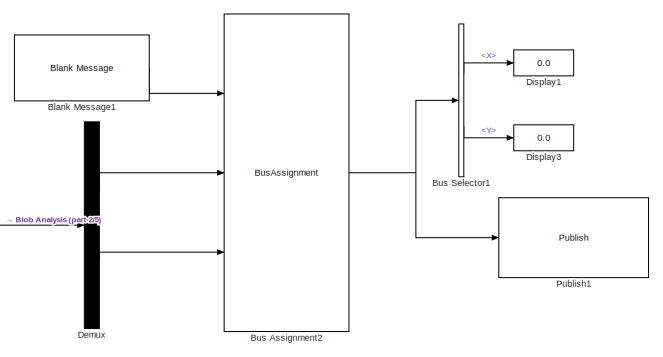
[diagram: root canvas - part 1/5, top right region]
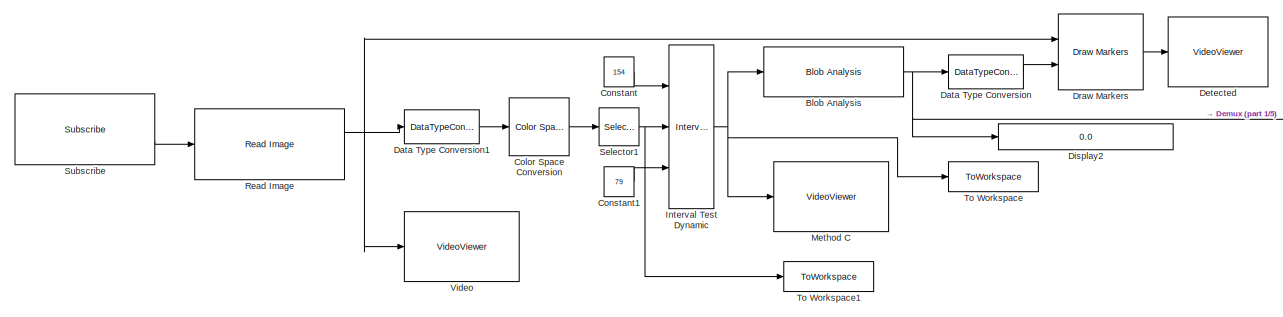
[diagram: root canvas - part 2/5, top center region]
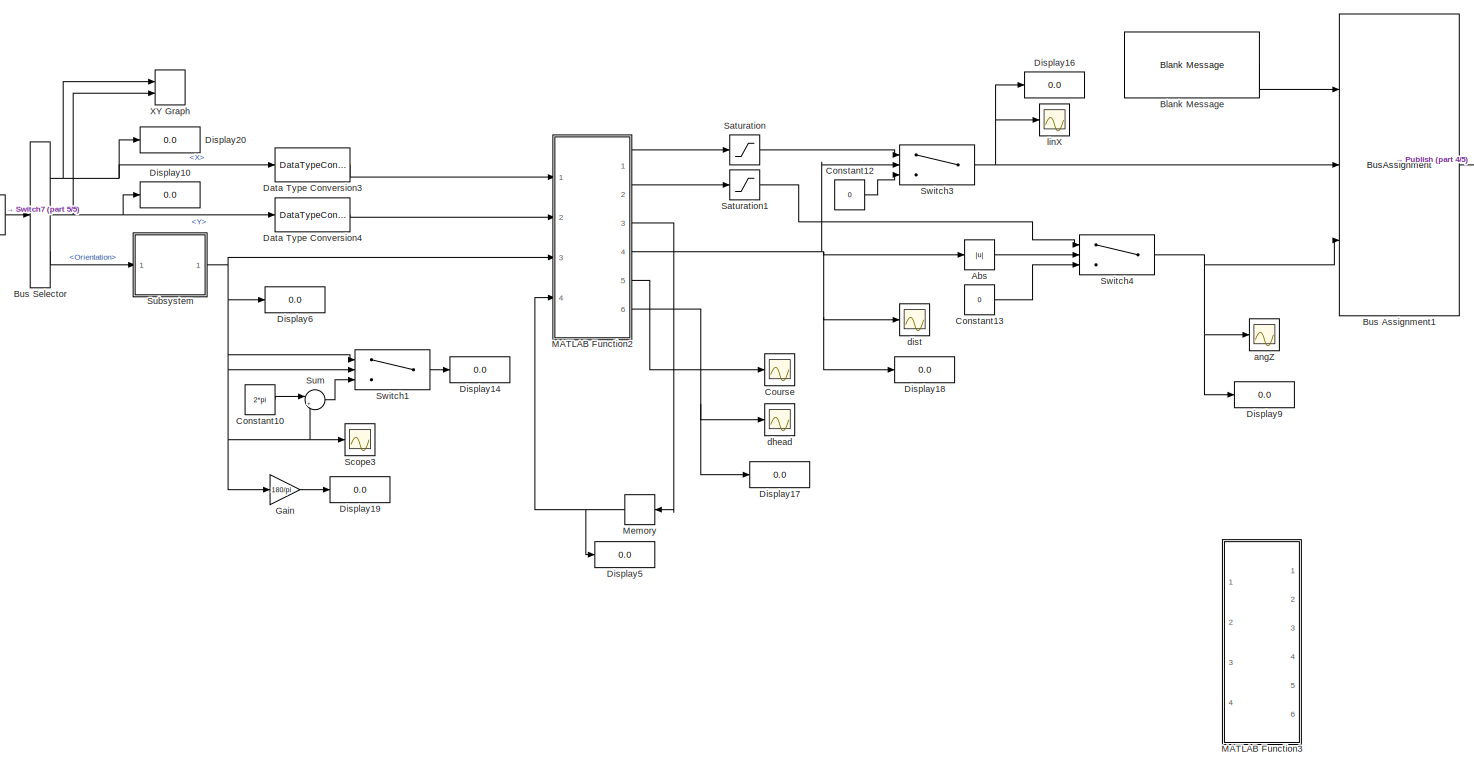
[diagram: root canvas - part 3/5, full width, bottom band]
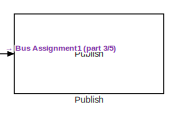
[diagram: root canvas - part 4/5, middle right region]
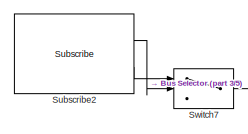
[diagram: root canvas - part 5/5, middle left region]
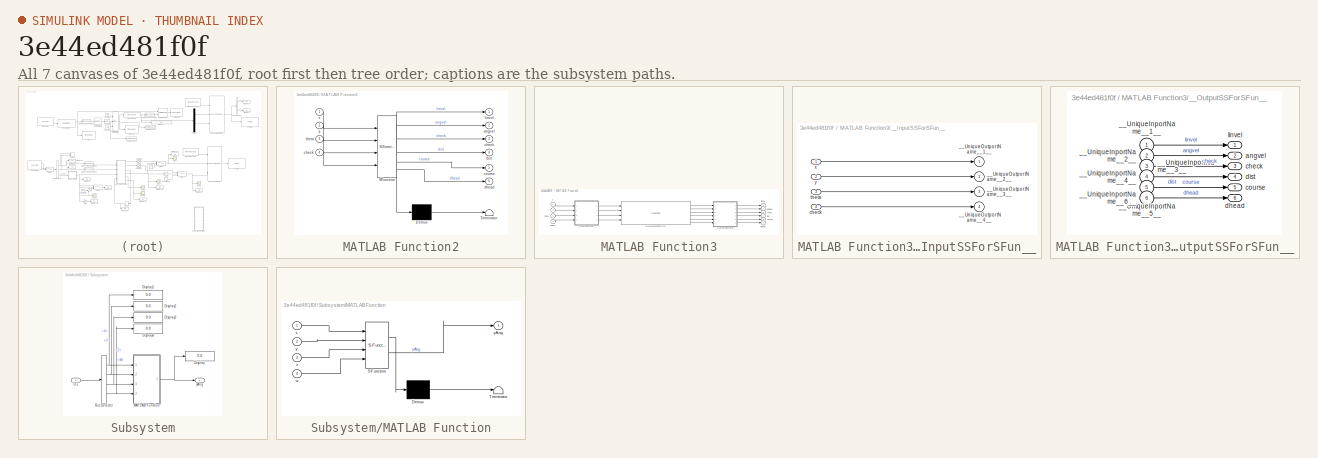
[diagram: thumbnail index - all 7 canvases of the model, root first then tree order]
MODEL slx_3e44ed481f0f
KIND model
CONFIG AbsTol = auto
CONFIG EnableMultiTasking = off
CONFIG FixedStep = 0.05
CONFIG MaxStep = auto
CONFIG MinStep = auto
CONFIG RelTol = 1e-3
CONFIG SampleTimeConstraint = Unconstrained
CONFIG SolverName = FixedStepAuto
CONFIG StartTime = 0.0
CONFIG StopTime = inf
WORKSPACE source: mxarray member
WORKSPACE SL_ROS_VariableLengthArrays_MaxSizes: object (value not decoded)
BLOCK [Abs] Abs
  SaturateOnIntegerOverflow = off
BLOCK [Reference] Blank Message  REF=robotlib/Blank Message
  Ports = [0, 1]
  SourceBlock = robotlib/Blank Message
  SourceProductBaseCode = RR
  SourceType = ROS Blank Message
BLOCK [Reference] Blank Message1  REF=robotlib/Blank Message
  Ports = [0, 1]
  SourceBlock = robotlib/Blank Message
  SourceProductBaseCode = RR
  SourceType = ROS Blank Message
BLOCK [Reference] Blob Analysis  REF=visionstatistics/Blob Analysis
  Ports = [1, 1]
  SourceBlock = visionstatistics/Blob Analysis
  SourceProductBaseCode = VP
  SourceType = Blob Analysis
  Tag = vipblks_row_conv
BLOCK [BusAssignment] Bus Assignment1
  AssignedSignals = Linear.X,Angular.Z
  Ports = [3, 1]
BLOCK [BusAssignment] Bus Assignment2
  AssignedSignals = X,Y
  Ports = [3, 1]
BLOCK [BusSelector] Bus Selector
  OutputSignals = Pose.Pose.Position.X,Pose.Pose.Position.Y,Pose.Pose.Orientation
  Ports = [1, 3]
BLOCK [BusSelector] Bus Selector1
  OutputSignals = X,Y
  Ports = [1, 2]
BLOCK [Reference] Color Space Conversion  REF=visionconversions/Color Space
 Conversion
  Ports = [1, 1]
  SourceBlock = visionconversions/Color Space\n Conversion
  SourceProductBaseCode = VP
  SourceType = Color Space Conversion
BLOCK [Constant] Constant
  Value = 154
BLOCK [Constant] Constant1
  Value = 79
BLOCK [Constant] Constant10
  Value = 2*pi
BLOCK [Constant] Constant12
  Value = 0
BLOCK [Constant] Constant13
  Value = 0
BLOCK [Scope] Course
  Floating = off
  NumInputPorts = 1
  Ports = [1]
  ScopeSpecificationString = Simulink.scopes.TimeScopeBlockCfg('CurrentConfiguration', extmgr.ConfigurationSet(extmgr.Configuration('Core','General UI',true),extmgr.Configuration('Core','Source UI',true),extmgr.Configuration('Sources','WiredSimulink',true,'DataLoggingVariableName','ScopeData1'),extmgr.Configuration('Visuals','Time Domain',true,'SerializedDisplays',{struct('MinYLimReal','-1.23135','MaxYLimReal','-1.20668','YLa...<+1437ch>
BLOCK [DataTypeConversion] Data Type Conversion
  RndMeth = Floor
  SaturateOnIntegerOverflow = off
BLOCK [DataTypeConversion] Data Type Conversion1
  RndMeth = Floor
  SaturateOnIntegerOverflow = off
BLOCK [DataTypeConversion] Data Type Conversion3
  OutDataTypeStr = double
  RndMeth = Floor
  SaturateOnIntegerOverflow = off
BLOCK [DataTypeConversion] Data Type Conversion4
  OutDataTypeStr = double
  RndMeth = Floor
  SaturateOnIntegerOverflow = off
BLOCK [Demux] Demux
  Outputs = 2
  Ports = [1, 2]
BLOCK [VideoViewer] Detected
  FigPos = [73 706 956 540]
  Ports = [1]
  ScopeSpecificationString = vipscopes.VideoViewerScopeCfg('CurrentConfiguration', extmgr.ConfigurationSet(extmgr.Configuration('Core','General UI',true),extmgr.Configuration('Core','Source UI',true),extmgr.Configuration('Sources','WiredSimulink',true),extmgr.Configuration('Visuals','Video',true),extmgr.Configuration('Tools','Image Navigation Tools',true,'Magnification',0.760416666666667,'FitToView',true),extmgr.Configuration...<+151ch>
  colormapValue = gray(256)
BLOCK [Display] Display1
  Decimation = 1
  Ports = [1]
BLOCK [Display] Display10
  Decimation = 1
  Ports = [1]
BLOCK [Display] Display14
  Decimation = 1
  Ports = [1]
BLOCK [Display] Display16
  Decimation = 1
  Ports = [1]
BLOCK [Display] Display17
  Decimation = 1
  Ports = [1]
BLOCK [Display] Display18
  Decimation = 1
  Ports = [1]
BLOCK [Display] Display19
  Decimation = 1
  Ports = [1]
BLOCK [Display] Display2
  Decimation = 1
  Ports = [1]
BLOCK [Display] Display20
  Decimation = 1
  Ports = [1]
BLOCK [Display] Display3
  Decimation = 1
  Ports = [1]
BLOCK [Display] Display5
  Decimation = 1
  Ports = [1]
BLOCK [Display] Display6
  Decimation = 1
  Ports = [1]
BLOCK [Display] Display9
  Decimation = 1
  Ports = [1]
BLOCK [Reference] Draw Markers  REF=visiontextngfix/Draw Markers
  Ports = [2, 1]
  SourceBlock = visiontextngfix/Draw Markers
  SourceProductBaseCode = VP
  SourceType = Draw Markers
BLOCK [Gain] Gain
  Gain = 180/pi
BLOCK [Reference] Interval Test Dynamic  REF=simulink/Logic and Bit
Operations/Interval Test
Dynamic
  Ports = [3, 1]
  SourceBlock = simulink/Logic and Bit\nOperations/Interval Test\nDynamic
  SourceProductBaseCode = SL
  SourceType = Interval Test Dynamic
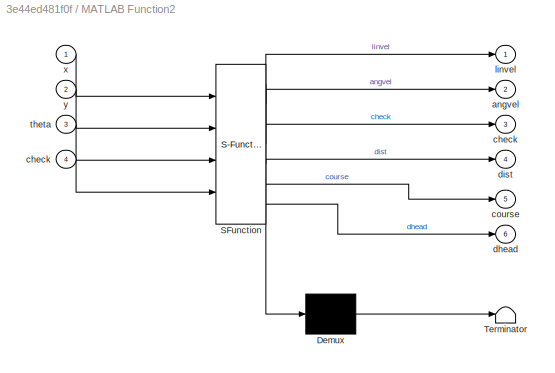
BLOCK [SubSystem] MATLAB Function2
  ErrorFcn = Stateflow.Translate.translate
  PermitHierarchicalResolution = ExplicitOnly
  Ports = [4, 6]
  RequestExecContextInheritance = off
  SFBlockType = MATLAB Function
  TreatAsAtomicUnit = on
BLOCK [Demux] MATLAB Function2/ Demux 
  Outputs = 1
  Ports = [1, 1]
BLOCK [S-Function] MATLAB Function2/ SFunction 
  EnableBusSupport = on
  FunctionName = sf_sfun
  PortCounts = [4 7]
  Ports = [4, 7]
  SFcnIsStateOwnerBlock = off
  SFunctionDeploymentMode = off
  Tag = Stateflow S-Function 1
BLOCK [Terminator] MATLAB Function2/ Terminator 
BLOCK [Outport] MATLAB Function2/angvel
  Port = 2
BLOCK [Outport] MATLAB Function2/check
  Port = 3
BLOCK [Inport] MATLAB Function2/check 
  Port = 4
BLOCK [Outport] MATLAB Function2/course
  Port = 5
BLOCK [Outport] MATLAB Function2/dhead
  Port = 6
BLOCK [Outport] MATLAB Function2/dist
  Port = 4
BLOCK [Outport] MATLAB Function2/linvel
BLOCK [Inport] MATLAB Function2/theta
  Port = 3
BLOCK [Inport] MATLAB Function2/x
BLOCK [Inport] MATLAB Function2/y
  Port = 2
BLOCK [SubSystem] MATLAB Function3
  Commented = on
  Ports = [4, 6]
  RequestExecContextInheritance = off
BLOCK [S-Function] MATLAB Function3/MATLAB Function_sfcn
  CopyFcn = if ~strcmp(get_param(gcb,'Linkstatus'),'none') && ...\n~strcmp(get_param(gcb,'Linkstatus'),'implicit')      \n  set_param(gcb,'LinkStatus','none');                \nend
  EnableBusSupport = off
  FunctionName = MATLAB0_sf
  Ports = [4, 6]
  SFcnIsStateOwnerBlock = off
  SFunctionDeploymentMode = off
BLOCK [SubSystem] MATLAB Function3/__InputSSForSFun__
  PermitHierarchicalResolution = ExplicitOnly
  Ports = [4, 4]
  RequestExecContextInheritance = off
BLOCK [Outport] MATLAB Function3/__InputSSForSFun__/__UniqueOutportName__1__
BLOCK [Outport] MATLAB Function3/__InputSSForSFun__/__UniqueOutportName__2__
  Port = 2
BLOCK [Outport] MATLAB Function3/__InputSSForSFun__/__UniqueOutportName__3__
  Port = 3
BLOCK [Outport] MATLAB Function3/__InputSSForSFun__/__UniqueOutportName__4__
  Port = 4
BLOCK [Inport] MATLAB Function3/__InputSSForSFun__/check 
  Port = 4
BLOCK [Inport] MATLAB Function3/__InputSSForSFun__/theta
  Port = 3
BLOCK [Inport] MATLAB Function3/__InputSSForSFun__/x
BLOCK [Inport] MATLAB Function3/__InputSSForSFun__/y
  Port = 2
BLOCK [SubSystem] MATLAB Function3/__OutputSSForSFun__
  PermitHierarchicalResolution = ExplicitOnly
  Ports = [6, 6]
  RequestExecContextInheritance = off
BLOCK [Inport] MATLAB Function3/__OutputSSForSFun__/__UniqueInportName__1__
BLOCK [Inport] MATLAB Function3/__OutputSSForSFun__/__UniqueInportName__2__
  Port = 2
BLOCK [Inport] MATLAB Function3/__OutputSSForSFun__/__UniqueInportName__3__
  Port = 3
BLOCK [Inport] MATLAB Function3/__OutputSSForSFun__/__UniqueInportName__4__
  Port = 4
BLOCK [Inport] MATLAB Function3/__OutputSSForSFun__/__UniqueInportName__5__
  Port = 5
BLOCK [Inport] MATLAB Function3/__OutputSSForSFun__/__UniqueInportName__6__
  Port = 6
BLOCK [Outport] MATLAB Function3/__OutputSSForSFun__/angvel
  Port = 2
BLOCK [Outport] MATLAB Function3/__OutputSSForSFun__/check
  Port = 3
BLOCK [Outport] MATLAB Function3/__OutputSSForSFun__/course
  Port = 5
BLOCK [Outport] MATLAB Function3/__OutputSSForSFun__/dhead
  Port = 6
BLOCK [Outport] MATLAB Function3/__OutputSSForSFun__/dist
  Port = 4
BLOCK [Outport] MATLAB Function3/__OutputSSForSFun__/linvel
BLOCK [Outport] MATLAB Function3/angvel
  Port = 2
BLOCK [Outport] MATLAB Function3/check
  Port = 3
BLOCK [Inport] MATLAB Function3/check 
  Port = 4
BLOCK [Outport] MATLAB Function3/course
  Port = 5
BLOCK [Outport] MATLAB Function3/dhead
  Port = 6
BLOCK [Outport] MATLAB Function3/dist
  Port = 4
BLOCK [Outport] MATLAB Function3/linvel
BLOCK [Inport] MATLAB Function3/theta
  Port = 3
BLOCK [Inport] MATLAB Function3/x
BLOCK [Inport] MATLAB Function3/y
  Port = 2
BLOCK [Memory] Memory
BLOCK [VideoViewer] Method C
  FigPos = [73 715 956 563]
  Ports = [1]
  ScopeSpecificationString = vipscopes.VideoViewerScopeCfg('CurrentConfiguration', extmgr.ConfigurationSet(extmgr.Configuration('Core','General UI',true),extmgr.Configuration('Core','Source UI',true),extmgr.Configuration('Sources','WiredSimulink',true),extmgr.Configuration('Visuals','Video',true),extmgr.Configuration('Tools','Image Navigation Tools',true,'Magnification',13.7454545454546),extmgr.Configuration('Tools','Image To...<+133ch>
  colormapValue = gray(256)
BLOCK [Reference] Publish  REF=robotlib/Publish
  Ports = [1]
  SourceBlock = robotlib/Publish
  SourceProductBaseCode = RR
  SourceType = ROS Publish
BLOCK [Reference] Publish1  REF=robotlib/Publish
  Ports = [1]
  SourceBlock = robotlib/Publish
  SourceProductBaseCode = RR
  SourceType = ROS Publish
BLOCK [Reference] Read Image  REF=robotlib/Read Image
  Ports = [1, 2]
  SourceBlock = robotlib/Read Image
  SourceProductBaseCode = RR
  SourceType = ros.slros.internal.block.ReadImage
BLOCK [Saturate] Saturation
  LowerLimit = -0.2
  UpperLimit = 0.2
BLOCK [Saturate] Saturation1
  LowerLimit = -0.4
  UpperLimit = 0.4
BLOCK [Scope] Scope3
  Floating = off
  NumInputPorts = 1
  Ports = [1]
  ScopeSpecificationString = Simulink.scopes.TimeScopeBlockCfg('CurrentConfiguration', extmgr.ConfigurationSet(extmgr.Configuration('Core','General UI',true),extmgr.Configuration('Core','Source UI',true),extmgr.Configuration('Sources','WiredSimulink',true,'DataLoggingVariableName','ScopeData2'),extmgr.Configuration('Visuals','Time Domain',true,'SerializedDisplays',{struct('MinYLimReal','2.44321','MaxYLimReal','3.50718','YLabe...<+1428ch>
BLOCK [Selector] Selector1
  IndexOptions = Index vector (dialog),Index vector (dialog),Index vector (dialog)
  Indices = [1:480],[1:640],[3]
  InputPortWidth = 3
  NumberOfDimensions = 3
  OutputSizes = 1,1,1
  Ports = [1, 1]
BLOCK [Reference] Subscribe  REF=robotlib/Subscribe
  Ports = [0, 2]
  SourceBlock = robotlib/Subscribe
  SourceProductBaseCode = RR
  SourceType = ROS Subscribe
BLOCK [Reference] Subscribe2  REF=robotlib/Subscribe
  Ports = [0, 2]
  SourceBlock = robotlib/Subscribe
  SourceProductBaseCode = RR
  SourceType = ROS Subscribe
BLOCK [SubSystem] Subsystem
  Ports = [1, 1]
  RequestExecContextInheritance = off
BLOCK [BusSelector] Subsystem/Bus Selector
  OutputSignals = X,Y,Z,W
  Ports = [1, 4]
BLOCK [Display] Subsystem/Display
  Decimation = 1
  Ports = [1]
BLOCK [Display] Subsystem/Display1
  Decimation = 1
  Ports = [1]
BLOCK [Display] Subsystem/Display2
  Decimation = 1
  Ports = [1]
BLOCK [Display] Subsystem/Display3
  Decimation = 1
  Ports = [1]
BLOCK [Display] Subsystem/Display4
  Decimation = 1
  Ports = [1]
BLOCK [Inport] Subsystem/In1
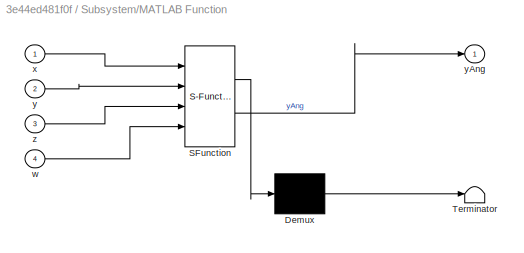
BLOCK [SubSystem] Subsystem/MATLAB Function
  ErrorFcn = Stateflow.Translate.translate
  PermitHierarchicalResolution = ExplicitOnly
  Ports = [4, 1]
  RequestExecContextInheritance = off
  SFBlockType = MATLAB Function
  TreatAsAtomicUnit = on
BLOCK [Demux] Subsystem/MATLAB Function/ Demux 
  Outputs = 1
  Ports = [1, 1]
BLOCK [S-Function] Subsystem/MATLAB Function/ SFunction 
  EnableBusSupport = on
  FunctionName = sf_sfun
  PortCounts = [4 2]
  Ports = [4, 2]
  SFcnIsStateOwnerBlock = off
  SFunctionDeploymentMode = off
  Tag = Stateflow S-Function 4
BLOCK [Terminator] Subsystem/MATLAB Function/ Terminator 
BLOCK [Inport] Subsystem/MATLAB Function/w
  Port = 4
BLOCK [Inport] Subsystem/MATLAB Function/x
BLOCK [Inport] Subsystem/MATLAB Function/y
  Port = 2
BLOCK [Outport] Subsystem/MATLAB Function/yAng
BLOCK [Inport] Subsystem/MATLAB Function/z
  Port = 3
BLOCK [Outport] Subsystem/yAng
BLOCK [Sum] Sum
  Inputs = |++
  Ports = [2, 1]
BLOCK [Switch] Switch1
  Criteria = u2 > Threshold
  InputSameDT = off
  SaturateOnIntegerOverflow = off
BLOCK [Switch] Switch3
  Criteria = u2 > Threshold
  InputSameDT = off
  SaturateOnIntegerOverflow = off
  Threshold = 0.05
BLOCK [Switch] Switch4
  Criteria = u2 > Threshold
  InputSameDT = off
  SaturateOnIntegerOverflow = off
  Threshold = 0.05
BLOCK [Switch] Switch7
  Criteria = u2 > Threshold
  InputSameDT = off
  SaturateOnIntegerOverflow = off
BLOCK [ToWorkspace] To Workspace
  FixptAsFi = on
  MaxDataPoints = inf
  Ports = [1]
  SampleTime = -1
  VariableName = hsvmatrixFilt
BLOCK [ToWorkspace] To Workspace1
  FixptAsFi = on
  MaxDataPoints = inf
  Ports = [1]
  SampleTime = -1
  VariableName = hsvmatrixUnf
BLOCK [VideoViewer] Video
  Commented = on
  FigPos = [78 939 1838 794]
  Ports = [1]
  ScopeSpecificationString = vipscopes.VideoViewerScopeCfg('CurrentConfiguration', extmgr.ConfigurationSet(extmgr.Configuration('Core','General UI',true),extmgr.Configuration('Core','Source UI',true),extmgr.Configuration('Sources','WiredSimulink',true),extmgr.Configuration('Sources','SimulinkEvent',false),extmgr.Configuration('Sources','Simulink',false),extmgr.Configuration('Sources','File',false),extmgr.Configuration('Source...<+1436ch>
  colormapValue = gray(256)
BLOCK [Record] XY Graph
  CompatibilityTag = XY
  FileSettingsInternal = {"entries":[{"content":{"excelSettings":{"content":{},"type":"Streamout.ExcelSettings"}},"type":"Streamout.FileSettingStorage","uuid":"f44344bb-7819-46ac-a6d0-15586ce5522e"}],"packageUris":["http://schema.mathworks.com/mf0/streamout_blocks/R2020a"],"version":"1.0"}
  Layout = [1 1]
  Ports = [2]
  SignalsInternal = {"entries":[{"content":{"signals":[{"content":{"blockPath":["ass3_isa/XY Graph"],"channel":[],"dimensions":[1],"domain":"ass3_isa/XY Graph","lineColor":"#edb120","plots":[],"port":1,"sid":[""],"signalID":20,"signalName":"<X>"},"type":"RecordBlkView.Signal","uuid":"8ec07af6-3c9d-4e8e-8eb6-888bf07ceb31"},{"content":{"blockPath":["ass3_isa/XY Graph"],"channel":[],"dimensions":[1],"domain":"ass3_isa/X...<+349ch>
  VisualizationBindings = {"xyplotplugin":{"info":[{"series":[],"subplotID":1}]}}
  st = -1
BLOCK [Scope] angZ
  Floating = off
  NumInputPorts = 1
  Ports = [1]
  ScopeSpecificationString = Simulink.scopes.TimeScopeBlockCfg('CurrentConfiguration', extmgr.ConfigurationSet(extmgr.Configuration('Core','General UI',true),extmgr.Configuration('Core','Source UI',true),extmgr.Configuration('Sources','WiredSimulink',true,'DataLoggingVariableName','ScopeData3'),extmgr.Configuration('Visuals','Time Domain',true,'SerializedDisplays',{struct('MinYLimReal','-1.00000','MaxYLimReal','1.00000','YLab...<+1421ch>
BLOCK [Scope] dhead
  Floating = off
  NumInputPorts = 1
  Ports = [1]
  ScopeSpecificationString = Simulink.scopes.TimeScopeBlockCfg('CurrentConfiguration', extmgr.ConfigurationSet(extmgr.Configuration('Core','General UI',true),extmgr.Configuration('Core','Source UI',true),extmgr.Configuration('Sources','WiredSimulink',true,'DataLoggingVariableName','ScopeData4'),extmgr.Configuration('Visuals','Time Domain',true,'SerializedDisplays',{struct('MinYLimReal','-1.42375','MaxYLimReal','2.13848','YLab...<+1451ch>
BLOCK [Scope] dist
  Floating = off
  NameLocation = right
  NumInputPorts = 1
  Ports = [1]
  ScopeSpecificationString = Simulink.scopes.TimeScopeBlockCfg('CurrentConfiguration', extmgr.ConfigurationSet(extmgr.Configuration('Core','General UI',true),extmgr.Configuration('Core','Source UI',true),extmgr.Configuration('Sources','WiredSimulink',true,'DataLoggingVariableName','ScopeData6'),extmgr.Configuration('Visuals','Time Domain',true),extmgr.Configuration('Tools','Plot Navigation',true),extmgr.Configuration('Tools',...<+40ch>
BLOCK [Scope] linX
  Floating = off
  NumInputPorts = 1
  Ports = [1]
  ScopeSpecificationString = Simulink.scopes.TimeScopeBlockCfg('CurrentConfiguration', extmgr.ConfigurationSet(extmgr.Configuration('Core','General UI',true),extmgr.Configuration('Core','Source UI',true),extmgr.Configuration('Sources','WiredSimulink',true),extmgr.Configuration('Visuals','Time Domain',true,'SerializedDisplays',{struct('MinYLimReal','-0.01249','MaxYLimReal','0.22361','YLabelReal','','MinYLimMag','0.00000','MaxY...<+1378ch>
LINE Abs:1 -> Switch4:2
LINE Blank Message1:1 -> Bus Assignment2:1
LINE Blank Message:1 -> Bus Assignment1:1
NET Blob Analysis:1 -> Data Type Conversion:1, Demux:1, Display2:1
LINE Bus Assignment1:1 -> Publish:1
NET Bus Assignment2:1 -> Bus Selector1:1, Publish1:1
LINE Bus Selector1:1 -> Display1:1
LINE Bus Selector1:2 -> Display3:1
NET Bus Selector:1 -> Data Type Conversion3:1, Display20:1, XY Graph:1
NET Bus Selector:2 -> Data Type Conversion4:1, Display10:1, XY Graph:2
LINE Bus Selector:3 -> Subsystem:1
LINE Color Space Conversion:1 -> Selector1:1
LINE Constant10:1 -> Sum:1
LINE Constant12:1 -> Switch3:3
LINE Constant13:1 -> Switch4:3
LINE Constant1:1 -> Interval Test Dynamic:3
LINE Constant:1 -> Interval Test Dynamic:1
LINE Data Type Conversion1:1 -> Color Space Conversion:1
LINE Data Type Conversion3:1 -> MATLAB Function2:1
LINE Data Type Conversion4:1 -> MATLAB Function2:2
LINE Data Type Conversion:1 -> Draw Markers:2
LINE Demux:1 -> Bus Assignment2:2
LINE Demux:2 -> Bus Assignment2:3
LINE Draw Markers:1 -> Detected:1
LINE Gain:1 -> Display19:1
NET Interval Test Dynamic:1 -> Blob Analysis:1, Method C:1, To Workspace:1
LINE MATLAB Function2:1 -> Saturation:1
LINE MATLAB Function2:2 -> Saturation1:1
LINE MATLAB Function2:3 -> Memory:1
NET MATLAB Function2:4 -> Abs:1, Display18:1, Switch3:2, dist:1
LINE MATLAB Function2:5 -> Course:1
NET MATLAB Function2:6 -> Display17:1, dhead:1
LINE MATLAB Function3/MATLAB Function_sfcn:1 -> MATLAB Function3/__OutputSSForSFun__:1
LINE MATLAB Function3/MATLAB Function_sfcn:2 -> MATLAB Function3/__OutputSSForSFun__:2
LINE MATLAB Function3/MATLAB Function_sfcn:3 -> MATLAB Function3/__OutputSSForSFun__:3
LINE MATLAB Function3/MATLAB Function_sfcn:4 -> MATLAB Function3/__OutputSSForSFun__:4
LINE MATLAB Function3/MATLAB Function_sfcn:5 -> MATLAB Function3/__OutputSSForSFun__:5
LINE MATLAB Function3/MATLAB Function_sfcn:6 -> MATLAB Function3/__OutputSSForSFun__:6
LINE MATLAB Function3/__InputSSForSFun__/check :1 -> MATLAB Function3/__InputSSForSFun__/__UniqueOutportName__4__:1
LINE MATLAB Function3/__InputSSForSFun__/theta:1 -> MATLAB Function3/__InputSSForSFun__/__UniqueOutportName__3__:1
LINE MATLAB Function3/__InputSSForSFun__/x:1 -> MATLAB Function3/__InputSSForSFun__/__UniqueOutportName__1__:1
LINE MATLAB Function3/__InputSSForSFun__/y:1 -> MATLAB Function3/__InputSSForSFun__/__UniqueOutportName__2__:1
LINE MATLAB Function3/__InputSSForSFun__:1 -> MATLAB Function3/MATLAB Function_sfcn:1
LINE MATLAB Function3/__InputSSForSFun__:2 -> MATLAB Function3/MATLAB Function_sfcn:2
LINE MATLAB Function3/__InputSSForSFun__:3 -> MATLAB Function3/MATLAB Function_sfcn:3
LINE MATLAB Function3/__InputSSForSFun__:4 -> MATLAB Function3/MATLAB Function_sfcn:4
LINE MATLAB Function3/__OutputSSForSFun__/__UniqueInportName__1__:1 -> MATLAB Function3/__OutputSSForSFun__/linvel:1
LINE MATLAB Function3/__OutputSSForSFun__/__UniqueInportName__2__:1 -> MATLAB Function3/__OutputSSForSFun__/angvel:1
LINE MATLAB Function3/__OutputSSForSFun__/__UniqueInportName__3__:1 -> MATLAB Function3/__OutputSSForSFun__/check:1
LINE MATLAB Function3/__OutputSSForSFun__/__UniqueInportName__4__:1 -> MATLAB Function3/__OutputSSForSFun__/dist:1
LINE MATLAB Function3/__OutputSSForSFun__/__UniqueInportName__5__:1 -> MATLAB Function3/__OutputSSForSFun__/course:1
LINE MATLAB Function3/__OutputSSForSFun__/__UniqueInportName__6__:1 -> MATLAB Function3/__OutputSSForSFun__/dhead:1
LINE MATLAB Function3/__OutputSSForSFun__:1 -> MATLAB Function3/linvel:1
LINE MATLAB Function3/__OutputSSForSFun__:2 -> MATLAB Function3/angvel:1
LINE MATLAB Function3/__OutputSSForSFun__:3 -> MATLAB Function3/check:1
LINE MATLAB Function3/__OutputSSForSFun__:4 -> MATLAB Function3/dist:1
LINE MATLAB Function3/__OutputSSForSFun__:5 -> MATLAB Function3/course:1
LINE MATLAB Function3/__OutputSSForSFun__:6 -> MATLAB Function3/dhead:1
LINE MATLAB Function3/check :1 -> MATLAB Function3/__InputSSForSFun__:4
LINE MATLAB Function3/theta:1 -> MATLAB Function3/__InputSSForSFun__:3
LINE MATLAB Function3/x:1 -> MATLAB Function3/__InputSSForSFun__:1
LINE MATLAB Function3/y:1 -> MATLAB Function3/__InputSSForSFun__:2
NET Memory:1 -> Display5:1, MATLAB Function2:4
NET Read Image:1 -> Data Type Conversion1:1, Draw Markers:1, Video:1
LINE Saturation1:1 -> Switch4:1
LINE Saturation:1 -> Switch3:1
NET Selector1:1 -> Interval Test Dynamic:2, To Workspace1:1
LINE Subscribe2:1 -> Switch7:2
LINE Subscribe2:2 -> Switch7:1
LINE Subscribe:2 -> Read Image:1
NET Subsystem/Bus Selector:1 -> Subsystem/Display1:1, Subsystem/MATLAB Function:1
NET Subsystem/Bus Selector:2 -> Subsystem/Display2:1, Subsystem/MATLAB Function:2
NET Subsystem/Bus Selector:3 -> Subsystem/Display3:1, Subsystem/MATLAB Function:3
NET Subsystem/Bus Selector:4 -> Subsystem/Display4:1, Subsystem/MATLAB Function:4
LINE Subsystem/In1:1 -> Subsystem/Bus Selector:1
NET Subsystem/MATLAB Function:1 -> Subsystem/Display:1, Subsystem/yAng:1
NET Subsystem:1 -> Display6:1, Gain:1, MATLAB Function2:3, Scope3:1, Sum:2, Switch1:1, Switch1:2
LINE Sum:1 -> Switch1:3
LINE Switch1:1 -> Display14:1
NET Switch3:1 -> Bus Assignment1:2, Display16:1, linX:1
NET Switch4:1 -> Bus Assignment1:3, Display9:1, angZ:1
LINE Switch7:1 -> Bus Selector:1
note: NET lines group one-source signal fan-out (src -> all destinations, sorted); 1:1 wires keep LINE
CHART MATLAB Function2 states=1 transitions=1
  STATE_LABEL 'eML_blk_kernel()'
  STATE_LABEL 'SCRIPT:\nfunction [linvel,angvel,check,dist,course,dhead] = fcn(x,y,theta,check)\nwpx     = 0; \nwpy     = 6;\nang     = pi/2;\ndist    = sqrt((x - wpx)^2 + (y - wpy)^2);\ncourse  = atan2(wpy - y,wpx - x);\nkpv     = 0.2;\nkpw     = 0.2;\n\n    if check == 0 \n        dhead  = ang - theta;\n        if dhead <= 0.03\n            check = 1;\n            linvel = 0;\n            angvel = 0;\n        else \n          ...<+388ch>'
CHART Subsystem/MATLAB Function states=1 transitions=1
  STATE_LABEL 'eML_blk_kernel()'
  STATE_LABEL 'SCRIPT:\nfunction yAng = conversAngle(x,y,z,w)\neulAngle = quat2eul([w,x,y,z]);\nyAng = eulAngle(1);\ncheck = isnan(yAng);\nif check == 1\n    yAng = 0;\nend\nend\n'
CHART  states=0 transitions=0
CHART  states=0 transitions=0
